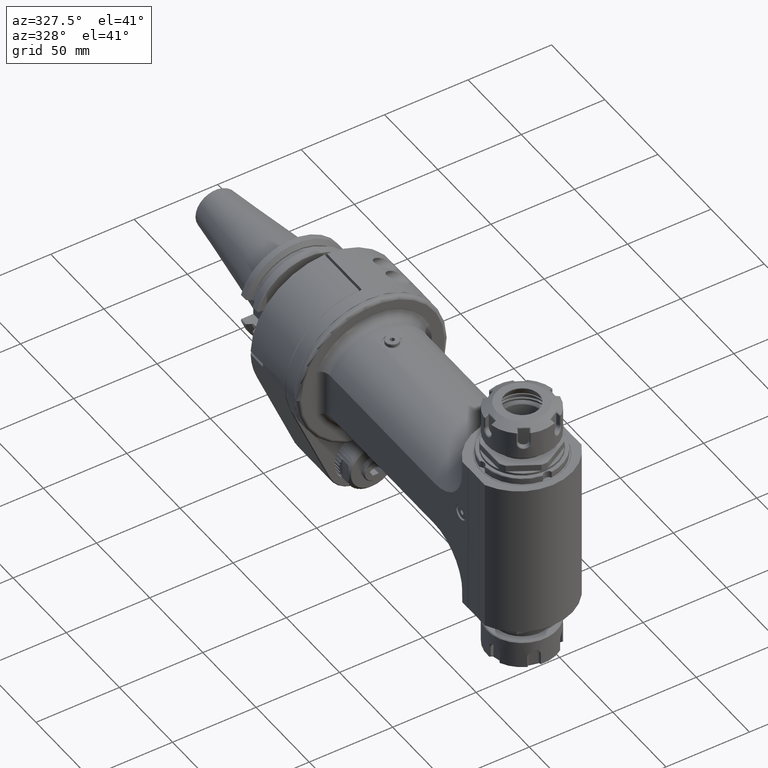
[diagram: clean part render]
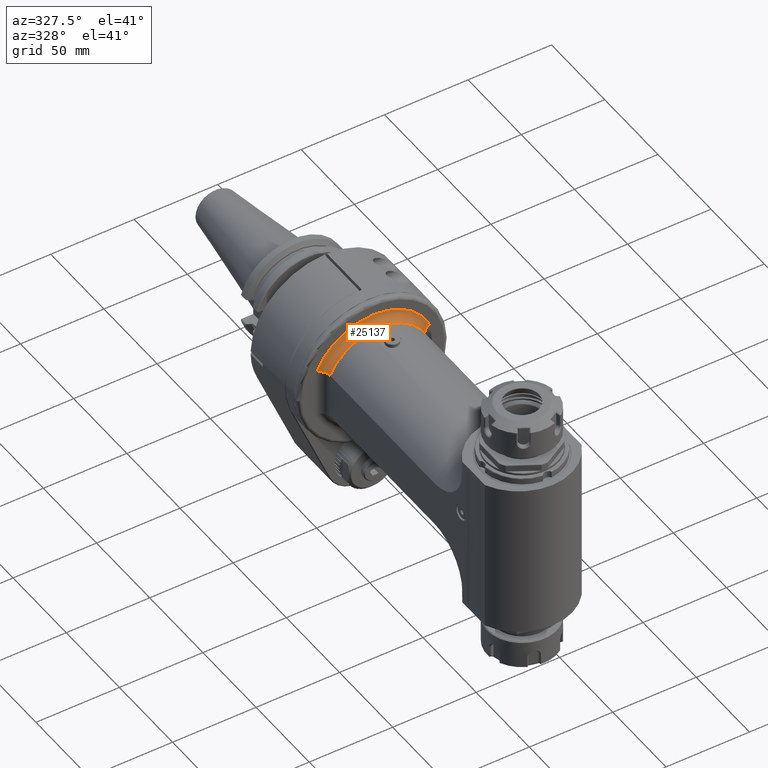
[diagram: same view with one face highlighted and labeled with its STEP entity id]
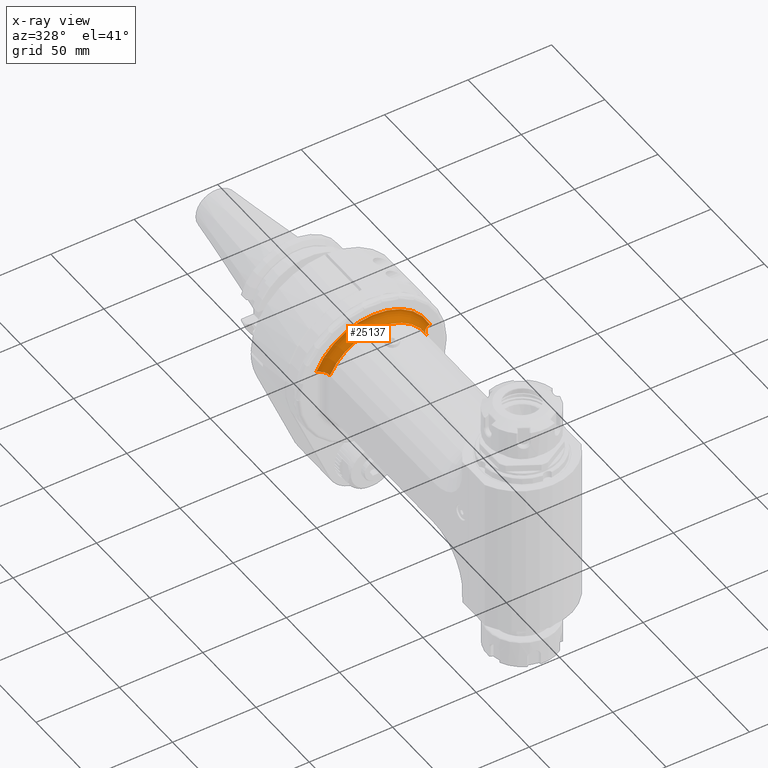
[diagram: x-ray of the same camera — body ghosted, the highlighted face saturated]
A machine part, auxiliary view. The second image highlights one B-rep face of the part: STEP entity #25137.
The next image is the same camera in x-ray: the body ghosted, the highlighted face saturated — about 0% of this face is hidden behind the body in this view.
In plain terms, the highlighted toroidal blend (fillet) surface has major radius 37 mm and minor (blend) radius 5 mm.
Its self-contained STEP definition (entity closure, byte-faithful):
#949=B_SPLINE_CURVE_WITH_KNOTS('',3,(#38116,#38117,#38118,#38119,#38120,
#38121,#38122,#38123,#38124,#38125,#38126,#38127,#38128,#38129,#38130,#38131,
#38132,#38133,#38134,#38135,#38136,#38137,#38138,#38139,#38140,#38141,#38142,
#38143,#38144,#38145,#38146,#38147,#38148,#38149,#38150,#38151,#38152,#38153,
#38154,#38155,#38156,#38157,#38158,#38159,#38160,#38161,#38162,#38163,#38164,
#38165,#38166,#38167,#38168,#38169,#38170,#38171,#38172,#38173,#38174,#38175,
#38176,#38177,#38178,#38179,#38180,#38181,#38182,#38183,#38184,#38185,#38186,
#38187,#38188,#38189,#38190,#38191,#38192,#38193,#38194,#38195,#38196,#38197,
#38198,#38199,#38200,#38201,#38202,#38203,#38204,#38205,#38206,#38207,#38208,
#38209,#38210,#38211,#38212,#38213,#38214,#38215,#38216,#38217,#38218),
 .UNSPECIFIED.,.F.,.F.,(4,3,3,3,3,3,3,3,3,3,3,3,3,3,3,3,3,3,3,3,3,3,3,3,
3,3,3,3,3,3,3,3,3,3,4),(0.,0.02941176470588,0.05882352941176,0.08823529411765,
0.1176470588235,0.1470588235294,0.1764705882353,0.2058823529412,0.2352941176471,
0.2647058823529,0.2941176470588,0.3235294117647,0.3529411764706,0.3823529411765,
0.4117647058824,0.4411764705882,0.4705882352941,0.5,0.5294117647059,0.5588235294118,
0.5882352941176,0.6176470588235,0.6470588235294,0.6764705882353,0.7058823529412,
0.7352941176471,0.7647058823529,0.7941176470588,0.8235294117647,0.8529411764706,
0.8823529411765,0.9117647058824,0.9411764705882,0.9705882352941,1.),
 .UNSPECIFIED.);
#968=B_SPLINE_CURVE_WITH_KNOTS('',3,(#38942,#38943,#38944,#38945,#38946,
#38947,#38948,#38949,#38950,#38951,#38952,#38953,#38954,#38955,#38956,#38957,
#38958,#38959,#38960,#38961,#38962,#38963,#38964,#38965,#38966,#38967,#38968,
#38969,#38970,#38971,#38972,#38973,#38974,#38975,#38976,#38977,#38978,#38979,
#38980,#38981,#38982,#38983,#38984,#38985,#38986,#38987,#38988,#38989,#38990,
#38991,#38992,#38993,#38994,#38995,#38996,#38997,#38998,#38999,#39000,#39001,
#39002,#39003,#39004,#39005,#39006,#39007,#39008,#39009,#39010,#39011,#39012,
#39013,#39014,#39015,#39016,#39017,#39018,#39019,#39020,#39021,#39022,#39023,
#39024,#39025,#39026,#39027,#39028,#39029,#39030,#39031,#39032,#39033,#39034,
#39035,#39036,#39037,#39038,#39039,#39040,#39041,#39042,#39043,#39044),
 .UNSPECIFIED.,.F.,.F.,(4,3,3,3,3,3,3,3,3,3,3,3,3,3,3,3,3,3,3,3,3,3,3,3,
3,3,3,3,3,3,3,3,3,3,4),(0.,0.02941176470588,0.05882352941176,0.08823529411765,
0.1176470588235,0.1470588235294,0.1764705882353,0.2058823529412,0.2352941176471,
0.2647058823529,0.2941176470588,0.3235294117647,0.3529411764706,0.3823529411765,
0.4117647058824,0.4411764705882,0.4705882352941,0.5,0.5294117647059,0.5588235294118,
0.5882352941176,0.6176470588235,0.6470588235294,0.6764705882353,0.7058823529412,
0.7352941176471,0.7647058823529,0.7941176470588,0.8235294117647,0.8529411764706,
0.8823529411765,0.9117647058824,0.9411764705882,0.9705882352941,1.),
 .UNSPECIFIED.);
#1433=TOROIDAL_SURFACE('',#26994,37.,5.);
#5951=FACE_OUTER_BOUND('',#7506,.T.);
#7506=EDGE_LOOP('',(#17416,#17417,#17418,#17419));
#9088=CIRCLE('',#26869,37.);
#9158=CIRCLE('',#26995,32.);
#10223=VERTEX_POINT('',#37390);
#10368=VERTEX_POINT('',#37826);
#10377=VERTEX_POINT('',#38114);
#10379=VERTEX_POINT('',#38222);
#13029=EDGE_CURVE('',#10377,#10223,#949,.T.);
#13032=EDGE_CURVE('',#10379,#10377,#9088,.T.);
#13175=EDGE_CURVE('',#10368,#10379,#968,.T.);
#13176=EDGE_CURVE('',#10368,#10223,#9158,.T.);
#17416=ORIENTED_EDGE('',*,*,#13032,.F.);
#17417=ORIENTED_EDGE('',*,*,#13175,.F.);
#17418=ORIENTED_EDGE('',*,*,#13176,.T.);
#17419=ORIENTED_EDGE('',*,*,#13029,.F.);
#25137=ADVANCED_FACE('',(#5951),#1433,.F.);
#26869=AXIS2_PLACEMENT_3D('',#38224,#29927,#29928);
#26994=AXIS2_PLACEMENT_3D('',#39045,#30231,#30232);
#26995=AXIS2_PLACEMENT_3D('',#39046,#30233,#30234);
#29927=DIRECTION('center_axis',(0.,1.,0.));
#29928=DIRECTION('ref_axis',(-0.918931285101835,0.,0.394417663475015));
#30231=DIRECTION('center_axis',(0.,-1.,0.));
#30232=DIRECTION('ref_axis',(0.999996080002561,0.,-0.00279999634133489));
#30233=DIRECTION('center_axis',(0.,1.,0.));
#30234=DIRECTION('ref_axis',(-0.906250000000018,0.,0.422742164327108));
#37390=CARTESIAN_POINT('',(29.,-41.8,13.52774925847));
#37826=CARTESIAN_POINT('',(-29.,-41.8,13.52774925847));
#38114=CARTESIAN_POINT('',(33.9999999343711,-36.8,14.5945198386011));
#38116=CARTESIAN_POINT('Ctrl Pts',(34.,-36.8,14.59451951933));
#38117=CARTESIAN_POINT('Ctrl Pts',(33.92203246995,-36.8,14.57849277793));
#38118=CARTESIAN_POINT('Ctrl Pts',(33.8440660175837,-36.8018236300748,14.56243984794));
#38119=CARTESIAN_POINT('Ctrl Pts',(33.7661614083667,-36.8054710419237,14.546373034205));
#38120=CARTESIAN_POINT('Ctrl Pts',(33.6882567991497,-36.8091184537725,14.53030622047));
#38121=CARTESIAN_POINT('Ctrl Pts',(33.6104140597681,-36.8145909710463,14.51422552299));
#38122=CARTESIAN_POINT('Ctrl Pts',(33.532778386327,-36.8218774659801,14.4981609288183));
#38123=CARTESIAN_POINT('Ctrl Pts',(33.4551427128858,-36.8291639609139,14.4820963346467));
#38124=CARTESIAN_POINT('Ctrl Pts',(33.3777139173122,-36.8382624416272,14.4660478437833));
#38125=CARTESIAN_POINT('Ctrl Pts',(33.3005091206102,-36.8491705230688,14.4500191945783));
#38126=CARTESIAN_POINT('Ctrl Pts',(33.2233043239084,-36.8600786045105,14.4339905453733));
#38127=CARTESIAN_POINT('Ctrl Pts',(33.1463237809582,-36.8727977523059,14.4179817378267));
#38128=CARTESIAN_POINT('Ctrl Pts',(33.0696790681134,-36.8873120429144,14.40201633136));
#38129=CARTESIAN_POINT('Ctrl Pts',(32.9930343552684,-36.901826333523,14.3860509248933));
#38130=CARTESIAN_POINT('Ctrl Pts',(32.9167255283054,-36.9181364094529,14.3701289195067));
#38131=CARTESIAN_POINT('Ctrl Pts',(32.8409021293779,-36.9362059946664,14.3542820362533));
#38132=CARTESIAN_POINT('Ctrl Pts',(32.7650787304504,-36.9542755798799,14.338435153));
#38133=CARTESIAN_POINT('Ctrl Pts',(32.6897402130705,-36.9741022663518,14.32266339188));
#38134=CARTESIAN_POINT('Ctrl Pts',(32.6148813638592,-36.9956846102888,14.3069664214033));
#38135=CARTESIAN_POINT('Ctrl Pts',(32.5400225146478,-37.0172669542259,14.2912694509267));
#38136=CARTESIAN_POINT('Ctrl Pts',(32.4656440017634,-37.0406071463531,14.2756472710933));
#38137=CARTESIAN_POINT('Ctrl Pts',(32.3918814704659,-37.0656621587629,14.2601293410267));
#38138=CARTESIAN_POINT('Ctrl Pts',(32.3181189391685,-37.0907171711728,14.24461141096));
#38139=CARTESIAN_POINT('Ctrl Pts',(32.244972202269,-37.1174866686552,14.22919773066));
#38140=CARTESIAN_POINT('Ctrl Pts',(32.1725498165013,-37.145923740759,14.2139121602366));
#38141=CARTESIAN_POINT('Ctrl Pts',(32.1001274307338,-37.1743608128627,14.1986265898133));
#38142=CARTESIAN_POINT('Ctrl Pts',(32.028428775855,-37.204463742149,14.1834691292667));
#38143=CARTESIAN_POINT('Ctrl Pts',(31.9574531820618,-37.236229355398,14.1684409548934));
#38144=CARTESIAN_POINT('Ctrl Pts',(31.8864775882684,-37.2679949686472,14.15341278052));
#38145=CARTESIAN_POINT('Ctrl Pts',(31.8162261184486,-37.3014256257298,14.13851389232));
#38146=CARTESIAN_POINT('Ctrl Pts',(31.7468482759378,-37.3364467844154,14.1237774570283));
#38147=CARTESIAN_POINT('Ctrl Pts',(31.677470433427,-37.3714679431011,14.1090410217367));
#38148=CARTESIAN_POINT('Ctrl Pts',(31.6089655244798,-37.4080783539904,14.0944670393533));
#38149=CARTESIAN_POINT('Ctrl Pts',(31.5413959518392,-37.4462354066432,14.0800701600167));
#38150=CARTESIAN_POINT('Ctrl Pts',(31.4738263791986,-37.484392459296,14.06567328068));
#38151=CARTESIAN_POINT('Ctrl Pts',(31.4071918388615,-37.5240954847239,14.05145350439));
#38152=CARTESIAN_POINT('Ctrl Pts',(31.3415143472242,-37.5653271632881,14.037417358025));
#38153=CARTESIAN_POINT('Ctrl Pts',(31.275836855587,-37.6065588418523,14.02338121166));
#38154=CARTESIAN_POINT('Ctrl Pts',(31.2111176126875,-37.6493211364212,14.00952869522));
#38155=CARTESIAN_POINT('Ctrl Pts',(31.1475001783677,-37.6935118692991,13.9958922927467));
#38156=CARTESIAN_POINT('Ctrl Pts',(31.0838827440478,-37.737702602177,13.9822558902733));
#38157=CARTESIAN_POINT('Ctrl Pts',(31.0213657790145,-37.7833198946758,13.9688356017666));
#38158=CARTESIAN_POINT('Ctrl Pts',(30.9599660921564,-37.8303408409334,13.9556367304733));
#38159=CARTESIAN_POINT('Ctrl Pts',(30.8985664052986,-37.8773617871909,13.94243785918));
#38160=CARTESIAN_POINT('Ctrl Pts',(30.8382844576742,-37.9257868836605,13.9294604051));
#38161=CARTESIAN_POINT('Ctrl Pts',(30.7791728495994,-37.9755690008522,13.9167178996184));
#38162=CARTESIAN_POINT('Ctrl Pts',(30.7200612415244,-38.0253511180441,13.9039753941367));
#38163=CARTESIAN_POINT('Ctrl Pts',(30.6621208685467,-38.0764914034773,13.8914678372534));
#38164=CARTESIAN_POINT('Ctrl Pts',(30.605469491689,-38.1288744739323,13.879222490835));
#38165=CARTESIAN_POINT('Ctrl Pts',(30.5488181148313,-38.1812575443873,13.8669771444167));
#38166=CARTESIAN_POINT('Ctrl Pts',(30.4934539893297,-38.2348815095894,13.8549940084633));
#38167=CARTESIAN_POINT('Ctrl Pts',(30.4393696915264,-38.2897419174113,13.84327338996));
#38168=CARTESIAN_POINT('Ctrl Pts',(30.385285393723,-38.3446023252333,13.8315527714567));
#38169=CARTESIAN_POINT('Ctrl Pts',(30.3324821288087,-38.400700288878,13.8200946704033));
#38170=CARTESIAN_POINT('Ctrl Pts',(30.281028294819,-38.4579572929025,13.8089163140667));
#38171=CARTESIAN_POINT('Ctrl Pts',(30.2295744608294,-38.5152142969271,13.79773795773));
#38172=CARTESIAN_POINT('Ctrl Pts',(30.1794704906877,-38.5736308206505,13.78683934611));
#38173=CARTESIAN_POINT('Ctrl Pts',(30.1308037739468,-38.6330897448308,13.7762412378583));
#38174=CARTESIAN_POINT('Ctrl Pts',(30.0821370572062,-38.6925486690109,13.7656431296067));
#38175=CARTESIAN_POINT('Ctrl Pts',(30.0349056860359,-38.7530483999637,13.7553455247233));
#38176=CARTESIAN_POINT('Ctrl Pts',(29.9890937205897,-38.8145970426445,13.7453469335484));
#38177=CARTESIAN_POINT('Ctrl Pts',(29.9432817551433,-38.8761456853254,13.7353483423734));
#38178=CARTESIAN_POINT('Ctrl Pts',(29.8988909873796,-38.9387445245197,13.7256487649067));
#38179=CARTESIAN_POINT('Ctrl Pts',(29.8559918085746,-39.0022873433108,13.71626592231));
#38180=CARTESIAN_POINT('Ctrl Pts',(29.8130926297695,-39.0658301621019,13.7068830797133));
#38181=CARTESIAN_POINT('Ctrl Pts',(29.7716849537484,-39.1303169870595,13.6978169719867));
#38182=CARTESIAN_POINT('Ctrl Pts',(29.7318270887285,-39.1956382740701,13.6890818732467));
#38183=CARTESIAN_POINT('Ctrl Pts',(29.6919692237087,-39.2609595610807,13.6803467745067));
#38184=CARTESIAN_POINT('Ctrl Pts',(29.653659334899,-39.3271141432926,13.6719426847533));
#38185=CARTESIAN_POINT('Ctrl Pts',(29.6168826856514,-39.3941150051056,13.66386827051));
#38186=CARTESIAN_POINT('Ctrl Pts',(29.5801060364039,-39.4611158669186,13.6557938562667));
#38187=CARTESIAN_POINT('Ctrl Pts',(29.5448647975502,-39.5289641724226,13.6480491175333));
#38188=CARTESIAN_POINT('Ctrl Pts',(29.5112213414089,-39.5975318040487,13.640649839665));
#38189=CARTESIAN_POINT('Ctrl Pts',(29.4775778852677,-39.6660994356747,13.6332505617967));
#38190=CARTESIAN_POINT('Ctrl Pts',(29.4455316037199,-39.7353861691262,13.6261967447933));
#38191=CARTESIAN_POINT('Ctrl Pts',(29.4151160974488,-39.8052971148246,13.61949692847));
#38192=CARTESIAN_POINT('Ctrl Pts',(29.3847005911779,-39.8752080605227,13.6127971121467));
#38193=CARTESIAN_POINT('Ctrl Pts',(29.3559143046161,-39.9457424867199,13.6064512965033));
#38194=CARTESIAN_POINT('Ctrl Pts',(29.3287483717044,-40.0169104831372,13.6004591918867));
#38195=CARTESIAN_POINT('Ctrl Pts',(29.3015824387927,-40.0880784795547,13.59446708727));
#38196=CARTESIAN_POINT('Ctrl Pts',(29.2760392023136,-40.1598809312512,13.58882869368));
#38197=CARTESIAN_POINT('Ctrl Pts',(29.2521666572474,-40.2321739415846,13.58355623331));
#38198=CARTESIAN_POINT('Ctrl Pts',(29.2282941121811,-40.304466951918,13.57828377294));
#38199=CARTESIAN_POINT('Ctrl Pts',(29.2060911576689,-40.3772502188222,13.57337724579));
#38200=CARTESIAN_POINT('Ctrl Pts',(29.1855727687842,-40.4504480612707,13.5688406510167));
#38201=CARTESIAN_POINT('Ctrl Pts',(29.1650543798995,-40.5236459037193,13.5643040562433));
#38202=CARTESIAN_POINT('Ctrl Pts',(29.1462194345144,-40.5972579484788,13.5601373938467));
#38203=CARTESIAN_POINT('Ctrl Pts',(29.1290656058376,-40.6712847446032,13.5563414546483));
#38204=CARTESIAN_POINT('Ctrl Pts',(29.1119117771607,-40.7453115407275,13.55254551545));
#38205=CARTESIAN_POINT('Ctrl Pts',(29.096441396222,-40.8197536352249,13.54912029945));
#38206=CARTESIAN_POINT('Ctrl Pts',(29.0826844002213,-40.8944574597663,13.546073468035));
#38207=CARTESIAN_POINT('Ctrl Pts',(29.0689274042206,-40.9691612843078,13.54302663662));
#38208=CARTESIAN_POINT('Ctrl Pts',(29.0568822599879,-41.0441266039265,13.54035818979));
#38209=CARTESIAN_POINT('Ctrl Pts',(29.0465521118747,-41.1192988764316,13.5380690156067));
#38210=CARTESIAN_POINT('Ctrl Pts',(29.0362219637615,-41.1944711489366,13.5357798414233));
#38211=CARTESIAN_POINT('Ctrl Pts',(29.0276062450548,-41.2698502384248,13.5338699398867));
#38212=CARTESIAN_POINT('Ctrl Pts',(29.0207071536495,-41.3454202487097,13.5323406298383));
#38213=CARTESIAN_POINT('Ctrl Pts',(29.0138080622443,-41.4209902589949,13.53081131979));
#38214=CARTESIAN_POINT('Ctrl Pts',(29.0086276912102,-41.4967513983948,13.52966260123));
#38215=CARTESIAN_POINT('Ctrl Pts',(29.0051760601472,-41.5725493243067,13.5288970859));
#38216=CARTESIAN_POINT('Ctrl Pts',(29.0017244290842,-41.6483472502185,13.52813157057));
#38217=CARTESIAN_POINT('Ctrl Pts',(29.,-41.72418192508,13.52774925847));
#38218=CARTESIAN_POINT('Ctrl Pts',(29.,-41.8,13.52774925847));
#38222=CARTESIAN_POINT('',(-34.0000000109072,-36.8,14.5945194662659));
#38224=CARTESIAN_POINT('Origin',(0.,-36.8,0.));
#38942=CARTESIAN_POINT('Ctrl Pts',(-29.,-41.8,13.52774925847));
#38943=CARTESIAN_POINT('Ctrl Pts',(-29.,-41.72418192508,13.52774925847));
#38944=CARTESIAN_POINT('Ctrl Pts',(-29.0017244290842,-41.6483472502185,
13.52813157057));
#38945=CARTESIAN_POINT('Ctrl Pts',(-29.0051760601472,-41.5725493243067,
13.5288970859));
#38946=CARTESIAN_POINT('Ctrl Pts',(-29.0086276912102,-41.4967513983949,
13.52966260123));
#38947=CARTESIAN_POINT('Ctrl Pts',(-29.0138080622443,-41.4209902589951,
13.53081131979));
#38948=CARTESIAN_POINT('Ctrl Pts',(-29.0207071536495,-41.34542024871,13.5323406298383));
#38949=CARTESIAN_POINT('Ctrl Pts',(-29.0276062450548,-41.2698502384248,
13.5338699398867));
#38950=CARTESIAN_POINT('Ctrl Pts',(-29.0362219637616,-41.1944711489364,
13.5357798414233));
#38951=CARTESIAN_POINT('Ctrl Pts',(-29.0465521118748,-41.1192988764313,
13.5380690156067));
#38952=CARTESIAN_POINT('Ctrl Pts',(-29.056882259988,-41.0441266039263,13.54035818979));
#38953=CARTESIAN_POINT('Ctrl Pts',(-29.0689274042206,-40.9691612843078,
13.54302663662));
#38954=CARTESIAN_POINT('Ctrl Pts',(-29.0826844002213,-40.8944574597664,
13.546073468035));
#38955=CARTESIAN_POINT('Ctrl Pts',(-29.096441396222,-40.819753635225,13.54912029945));
#38956=CARTESIAN_POINT('Ctrl Pts',(-29.1119117771607,-40.7453115407275,
13.55254551545));
#38957=CARTESIAN_POINT('Ctrl Pts',(-29.1290656058376,-40.6712847446032,
13.5563414546483));
#38958=CARTESIAN_POINT('Ctrl Pts',(-29.1462194345144,-40.5972579484788,
13.5601373938467));
#38959=CARTESIAN_POINT('Ctrl Pts',(-29.1650543798995,-40.5236459037193,
13.5643040562433));
#38960=CARTESIAN_POINT('Ctrl Pts',(-29.1855727687842,-40.4504480612707,
13.5688406510167));
#38961=CARTESIAN_POINT('Ctrl Pts',(-29.2060911576689,-40.3772502188222,
13.57337724579));
#38962=CARTESIAN_POINT('Ctrl Pts',(-29.2282941121811,-40.304466951918,13.57828377294));
#38963=CARTESIAN_POINT('Ctrl Pts',(-29.2521666572474,-40.2321739415846,
13.58355623331));
#38964=CARTESIAN_POINT('Ctrl Pts',(-29.2760392023136,-40.1598809312512,
13.58882869368));
#38965=CARTESIAN_POINT('Ctrl Pts',(-29.3015824387927,-40.0880784795547,
13.59446708727));
#38966=CARTESIAN_POINT('Ctrl Pts',(-29.3287483717044,-40.0169104831372,
13.6004591918867));
#38967=CARTESIAN_POINT('Ctrl Pts',(-29.3559143046161,-39.9457424867199,
13.6064512965033));
#38968=CARTESIAN_POINT('Ctrl Pts',(-29.3847005911779,-39.8752080605227,
13.6127971121467));
#38969=CARTESIAN_POINT('Ctrl Pts',(-29.4151160974488,-39.8052971148246,
13.61949692847));
#38970=CARTESIAN_POINT('Ctrl Pts',(-29.4455316037199,-39.7353861691262,
13.6261967447933));
#38971=CARTESIAN_POINT('Ctrl Pts',(-29.4775778852677,-39.6660994356747,
13.6332505617967));
#38972=CARTESIAN_POINT('Ctrl Pts',(-29.5112213414089,-39.5975318040487,
13.640649839665));
#38973=CARTESIAN_POINT('Ctrl Pts',(-29.5448647975502,-39.5289641724226,
13.6480491175333));
#38974=CARTESIAN_POINT('Ctrl Pts',(-29.5801060364039,-39.4611158669186,
13.6557938562667));
#38975=CARTESIAN_POINT('Ctrl Pts',(-29.6168826856514,-39.3941150051056,
13.66386827051));
#38976=CARTESIAN_POINT('Ctrl Pts',(-29.653659334899,-39.3271141432926,13.6719426847533));
#38977=CARTESIAN_POINT('Ctrl Pts',(-29.6919692237087,-39.2609595610807,
13.6803467745067));
#38978=CARTESIAN_POINT('Ctrl Pts',(-29.7318270887285,-39.1956382740701,
13.6890818732467));
#38979=CARTESIAN_POINT('Ctrl Pts',(-29.7716849537484,-39.1303169870595,
13.6978169719867));
#38980=CARTESIAN_POINT('Ctrl Pts',(-29.8130926297695,-39.0658301621019,
13.7068830797133));
#38981=CARTESIAN_POINT('Ctrl Pts',(-29.8559918085746,-39.0022873433108,
13.71626592231));
#38982=CARTESIAN_POINT('Ctrl Pts',(-29.8988909873796,-38.9387445245197,
13.7256487649067));
#38983=CARTESIAN_POINT('Ctrl Pts',(-29.9432817551433,-38.8761456853254,
13.7353483423734));
#38984=CARTESIAN_POINT('Ctrl Pts',(-29.9890937205897,-38.8145970426445,
13.7453469335484));
#38985=CARTESIAN_POINT('Ctrl Pts',(-30.0349056860359,-38.7530483999637,
13.7553455247233));
#38986=CARTESIAN_POINT('Ctrl Pts',(-30.0821370572062,-38.6925486690109,
13.7656431296067));
#38987=CARTESIAN_POINT('Ctrl Pts',(-30.1308037739468,-38.6330897448308,
13.7762412378583));
#38988=CARTESIAN_POINT('Ctrl Pts',(-30.1794704906877,-38.5736308206505,
13.78683934611));
#38989=CARTESIAN_POINT('Ctrl Pts',(-30.2295744608294,-38.5152142969271,
13.79773795773));
#38990=CARTESIAN_POINT('Ctrl Pts',(-30.281028294819,-38.4579572929025,13.8089163140667));
#38991=CARTESIAN_POINT('Ctrl Pts',(-30.3324821288087,-38.400700288878,13.8200946704033));
#38992=CARTESIAN_POINT('Ctrl Pts',(-30.385285393723,-38.3446023252333,13.8315527714567));
#38993=CARTESIAN_POINT('Ctrl Pts',(-30.4393696915264,-38.2897419174113,
13.84327338996));
#38994=CARTESIAN_POINT('Ctrl Pts',(-30.4934539893297,-38.2348815095894,
13.8549940084633));
#38995=CARTESIAN_POINT('Ctrl Pts',(-30.5488181148313,-38.1812575443873,
13.8669771444167));
#38996=CARTESIAN_POINT('Ctrl Pts',(-30.605469491689,-38.1288744739323,13.879222490835));
#38997=CARTESIAN_POINT('Ctrl Pts',(-30.6621208685467,-38.0764914034773,
13.8914678372534));
#38998=CARTESIAN_POINT('Ctrl Pts',(-30.7200612415244,-38.0253511180441,
13.9039753941367));
#38999=CARTESIAN_POINT('Ctrl Pts',(-30.7791728495994,-37.9755690008522,
13.9167178996184));
#39000=CARTESIAN_POINT('Ctrl Pts',(-30.8382844576742,-37.9257868836605,
13.9294604051));
#39001=CARTESIAN_POINT('Ctrl Pts',(-30.8985664052986,-37.8773617871909,
13.94243785918));
#39002=CARTESIAN_POINT('Ctrl Pts',(-30.9599660921564,-37.8303408409334,
13.9556367304733));
#39003=CARTESIAN_POINT('Ctrl Pts',(-31.0213657790144,-37.7833198946758,
13.9688356017666));
#39004=CARTESIAN_POINT('Ctrl Pts',(-31.0838827440478,-37.737702602177,13.9822558902733));
#39005=CARTESIAN_POINT('Ctrl Pts',(-31.1475001783677,-37.6935118692991,
13.9958922927467));
#39006=CARTESIAN_POINT('Ctrl Pts',(-31.2111176126875,-37.6493211364212,
14.00952869522));
#39007=CARTESIAN_POINT('Ctrl Pts',(-31.275836855587,-37.6065588418523,14.02338121166));
#39008=CARTESIAN_POINT('Ctrl Pts',(-31.3415143472242,-37.5653271632881,
14.037417358025));
#39009=CARTESIAN_POINT('Ctrl Pts',(-31.4071918388615,-37.5240954847239,
14.05145350439));
#39010=CARTESIAN_POINT('Ctrl Pts',(-31.4738263791986,-37.484392459296,14.06567328068));
#39011=CARTESIAN_POINT('Ctrl Pts',(-31.5413959518392,-37.4462354066432,
14.0800701600167));
#39012=CARTESIAN_POINT('Ctrl Pts',(-31.6089655244798,-37.4080783539904,
14.0944670393533));
#39013=CARTESIAN_POINT('Ctrl Pts',(-31.677470433427,-37.3714679431011,14.1090410217367));
#39014=CARTESIAN_POINT('Ctrl Pts',(-31.7468482759378,-37.3364467844154,
14.1237774570283));
#39015=CARTESIAN_POINT('Ctrl Pts',(-31.8162261184486,-37.3014256257297,
14.13851389232));
#39016=CARTESIAN_POINT('Ctrl Pts',(-31.8864775882684,-37.2679949686472,
14.15341278052));
#39017=CARTESIAN_POINT('Ctrl Pts',(-31.9574531820618,-37.236229355398,14.1684409548934));
#39018=CARTESIAN_POINT('Ctrl Pts',(-32.028428775855,-37.204463742149,14.1834691292667));
#39019=CARTESIAN_POINT('Ctrl Pts',(-32.1001274307338,-37.1743608128627,
14.1986265898133));
#39020=CARTESIAN_POINT('Ctrl Pts',(-32.1725498165013,-37.145923740759,14.2139121602366));
#39021=CARTESIAN_POINT('Ctrl Pts',(-32.244972202269,-37.1174866686552,14.22919773066));
#39022=CARTESIAN_POINT('Ctrl Pts',(-32.3181189391685,-37.0907171711728,
14.24461141096));
#39023=CARTESIAN_POINT('Ctrl Pts',(-32.3918814704659,-37.0656621587629,
14.2601293410267));
#39024=CARTESIAN_POINT('Ctrl Pts',(-32.4656440017634,-37.0406071463531,
14.2756472710933));
#39025=CARTESIAN_POINT('Ctrl Pts',(-32.5400225146478,-37.0172669542259,
14.2912694509267));
#39026=CARTESIAN_POINT('Ctrl Pts',(-32.6148813638592,-36.9956846102888,
14.3069664214033));
#39027=CARTESIAN_POINT('Ctrl Pts',(-32.6897402130705,-36.9741022663518,
14.32266339188));
#39028=CARTESIAN_POINT('Ctrl Pts',(-32.7650787304504,-36.9542755798799,
14.338435153));
#39029=CARTESIAN_POINT('Ctrl Pts',(-32.8409021293779,-36.9362059946664,
14.3542820362533));
#39030=CARTESIAN_POINT('Ctrl Pts',(-32.9167255283054,-36.9181364094529,
14.3701289195067));
#39031=CARTESIAN_POINT('Ctrl Pts',(-32.9930343552683,-36.901826333523,14.3860509248933));
#39032=CARTESIAN_POINT('Ctrl Pts',(-33.0696790681133,-36.8873120429144,
14.40201633136));
#39033=CARTESIAN_POINT('Ctrl Pts',(-33.1463237809583,-36.8727977523059,
14.4179817378267));
#39034=CARTESIAN_POINT('Ctrl Pts',(-33.2233043239086,-36.8600786045104,
14.4339905453734));
#39035=CARTESIAN_POINT('Ctrl Pts',(-33.3005091206106,-36.8491705230688,
14.4500191945784));
#39036=CARTESIAN_POINT('Ctrl Pts',(-33.3777139173123,-36.8382624416272,
14.4660478437834));
#39037=CARTESIAN_POINT('Ctrl Pts',(-33.4551427128858,-36.8291639609139,
14.4820963346467));
#39038=CARTESIAN_POINT('Ctrl Pts',(-33.5327783863267,-36.8218774659801,
14.4981609288183));
#39039=CARTESIAN_POINT('Ctrl Pts',(-33.610414059768,-36.8145909710463,14.51422552299));
#39040=CARTESIAN_POINT('Ctrl Pts',(-33.6882567991496,-36.8091184537725,
14.53030622047));
#39041=CARTESIAN_POINT('Ctrl Pts',(-33.7661614083667,-36.8054710419237,
14.546373034205));
#39042=CARTESIAN_POINT('Ctrl Pts',(-33.8440660175837,-36.8018236300748,
14.56243984794));
#39043=CARTESIAN_POINT('Ctrl Pts',(-33.92203246995,-36.8,14.57849277793));
#39044=CARTESIAN_POINT('Ctrl Pts',(-34.,-36.8,14.59451951933));
#39045=CARTESIAN_POINT('Origin',(0.,-41.8,0.));
#39046=CARTESIAN_POINT('Origin',(0.,-41.8,0.));